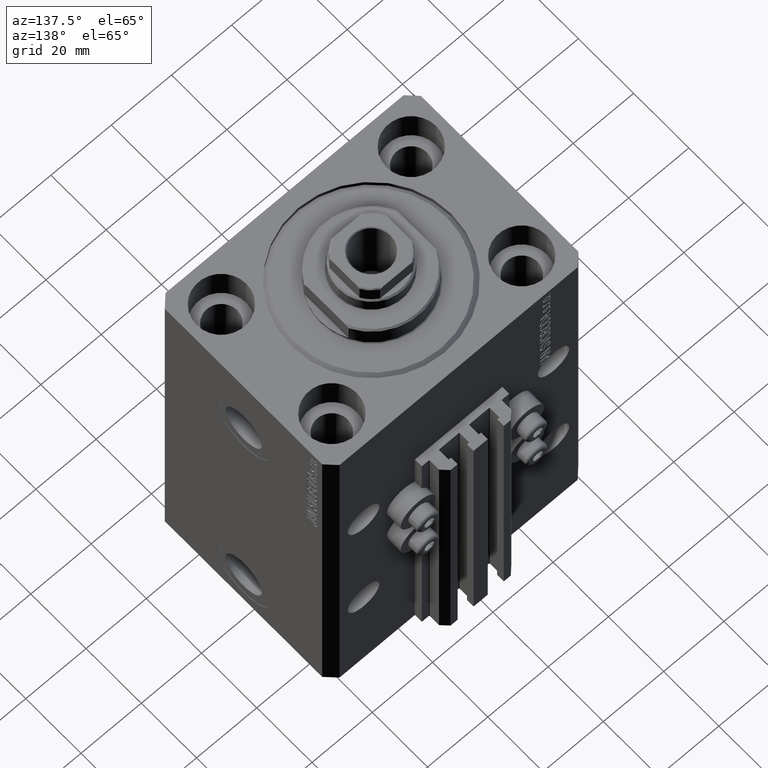
[diagram: clean part render]
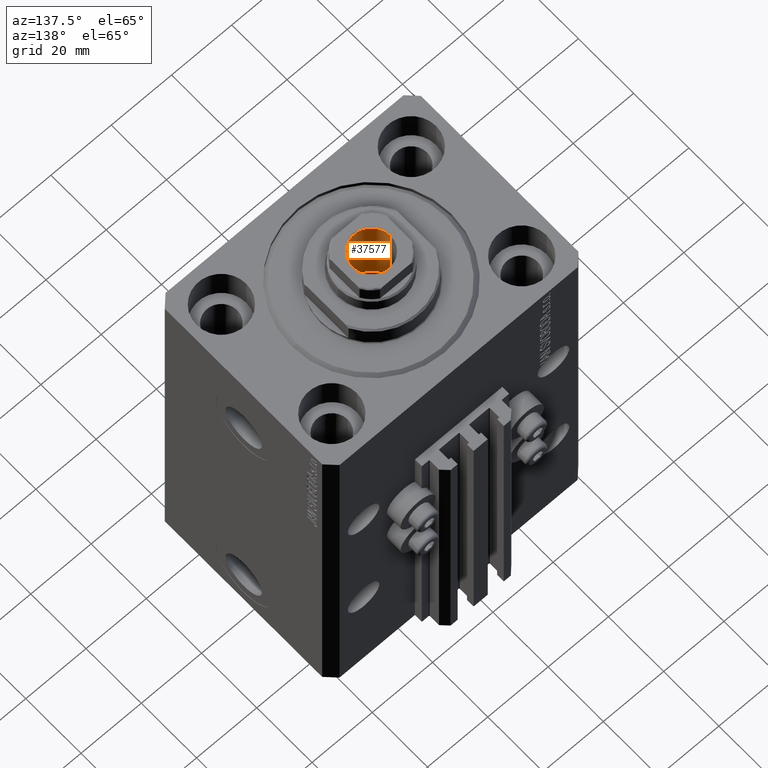
[diagram: same view with one face highlighted and labeled with its STEP entity id]
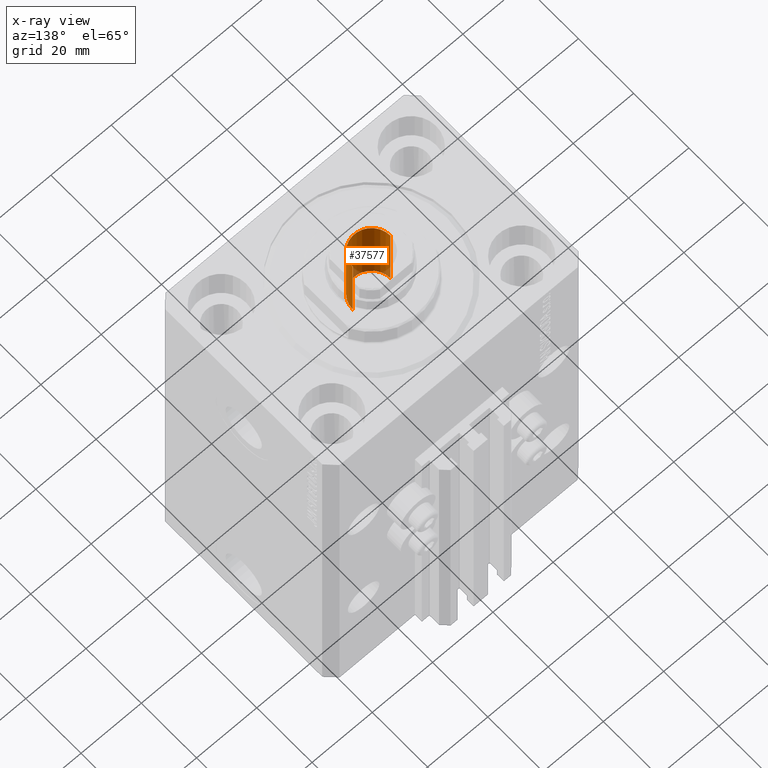
[diagram: x-ray of the same camera — body ghosted, the highlighted face saturated]
A machine part, auxiliary view. The second image highlights one B-rep face of the part: STEP entity #37577.
The next image is the same camera in x-ray: the body ghosted, the highlighted face saturated — about 4% of this face is hidden behind the body in this view.
In plain terms, the highlighted cylindrical surface (edge-blend (fillet) strip) has radius 6.25 mm, axis along (0, 0, 1).
Its self-contained STEP definition (entity closure, byte-faithful):
#1499 = CYLINDRICAL_SURFACE ( 'NONE', #43017, 6.249999999999995559 ) ;
#1886 = VECTOR ( 'NONE', #13335, 1000.000000000000000 ) ;
#2594 = CARTESIAN_POINT ( 'NONE',  ( 6.249999999999993783, 0.000000000000000000, 103.5999999999999943 ) ) ;
#4952 = FACE_OUTER_BOUND ( 'NONE', #48389, .T. ) ;
#7573 = VECTOR ( 'NONE', #47922, 1000.000000000000000 ) ;
#9891 = CARTESIAN_POINT ( 'NONE',  ( -6.249999999999995559, 7.654042494670950704E-16, 128.5999999999999943 ) ) ;
#13335 = DIRECTION ( 'NONE',  ( -0.000000000000000000, -0.000000000000000000, 1.000000000000000000 ) ) ;
#14146 = VERTEX_POINT ( 'NONE', #2594 ) ;
#14507 = AXIS2_PLACEMENT_3D ( 'NONE', #23739, #15632, #31367 ) ;
#15632 = DIRECTION ( 'NONE',  ( -0.000000000000000000, -0.000000000000000000, 1.000000000000000000 ) ) ;
#15907 = EDGE_CURVE ( 'NONE', #27491, #46070, #17273, .T. ) ;
#17197 = CARTESIAN_POINT ( 'NONE',  ( 6.249999999999995559, 0.000000000000000000, 128.5999999999999943 ) ) ;
#17206 = DIRECTION ( 'NONE',  ( -0.000000000000000000, -0.000000000000000000, 1.000000000000000000 ) ) ;
#17273 = LINE ( 'NONE', #9891, #1886 ) ;
#21243 = CARTESIAN_POINT ( 'NONE',  ( -6.249999999999993783, 7.654042494670949718E-16, 103.5999999999999943 ) ) ;
#21297 = ORIENTED_EDGE ( 'NONE', *, *, #27345, .F. ) ;
#21367 = LINE ( 'NONE', #17197, #7573 ) ;
#22074 = ORIENTED_EDGE ( 'NONE', *, *, #35070, .F. ) ;
#23739 = CARTESIAN_POINT ( 'NONE',  ( 0.000000000000000000, 0.000000000000000000, 103.5999999999999943 ) ) ;
#24050 = DIRECTION ( 'NONE',  ( 1.000000000000000000, 0.000000000000000000, 0.000000000000000000 ) ) ;
#24130 = EDGE_CURVE ( 'NONE', #46070, #43643, #28534, .T. ) ;
#24754 = DIRECTION ( 'NONE',  ( 0.000000000000000000, 0.000000000000000000, 1.000000000000000000 ) ) ;
#24819 = CARTESIAN_POINT ( 'NONE',  ( -6.249999999999995559, 7.654042494670950704E-16, 128.3000000000000114 ) ) ;
#27345 = EDGE_CURVE ( 'NONE', #27491, #14146, #38928, .T. ) ;
#27428 = ORIENTED_EDGE ( 'NONE', *, *, #15907, .T. ) ;
#27491 = VERTEX_POINT ( 'NONE', #21243 ) ;
#28534 = CIRCLE ( 'NONE', #40308, 6.249999999999995559 ) ;
#31367 = DIRECTION ( 'NONE',  ( 1.000000000000000000, 0.000000000000000000, 0.000000000000000000 ) ) ;
#34957 = CARTESIAN_POINT ( 'NONE',  ( 0.000000000000000000, 0.000000000000000000, 128.5999999999999943 ) ) ;
#35070 = EDGE_CURVE ( 'NONE', #14146, #43643, #21367, .T. ) ;
#36320 = CARTESIAN_POINT ( 'NONE',  ( 0.000000000000000000, 0.000000000000000000, 128.3000000000000114 ) ) ;
#37577 = ADVANCED_FACE ( 'NONE', ( #4952 ), #1499, .F. ) ;
#38928 = CIRCLE ( 'NONE', #14507, 6.249999999999993783 ) ;
#40308 = AXIS2_PLACEMENT_3D ( 'NONE', #36320, #24754, #24050 ) ;
#40360 = ORIENTED_EDGE ( 'NONE', *, *, #24130, .T. ) ;
#43017 = AXIS2_PLACEMENT_3D ( 'NONE', #34957, #17206, #46742 ) ;
#43643 = VERTEX_POINT ( 'NONE', #46438 ) ;
#46070 = VERTEX_POINT ( 'NONE', #24819 ) ;
#46438 = CARTESIAN_POINT ( 'NONE',  ( 6.249999999999995559, 0.000000000000000000, 128.3000000000000114 ) ) ;
#46742 = DIRECTION ( 'NONE',  ( 1.000000000000000000, 0.000000000000000000, 0.000000000000000000 ) ) ;
#47922 = DIRECTION ( 'NONE',  ( -0.000000000000000000, -0.000000000000000000, 1.000000000000000000 ) ) ;
#48389 = EDGE_LOOP ( 'NONE', ( #21297, #27428, #40360, #22074 ) ) ;